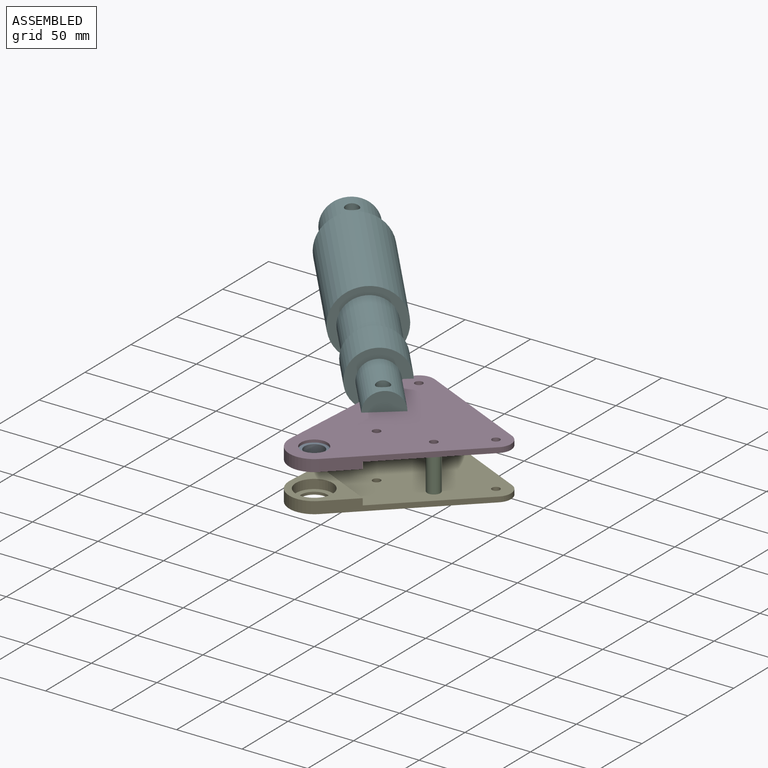
[diagram: assembled view]
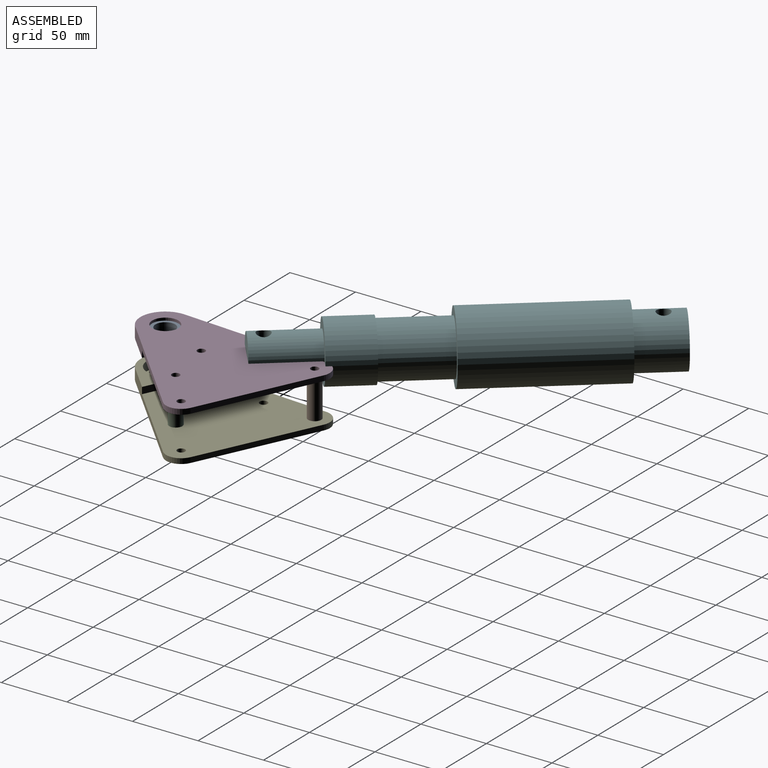
[diagram: assembled view, second angle]
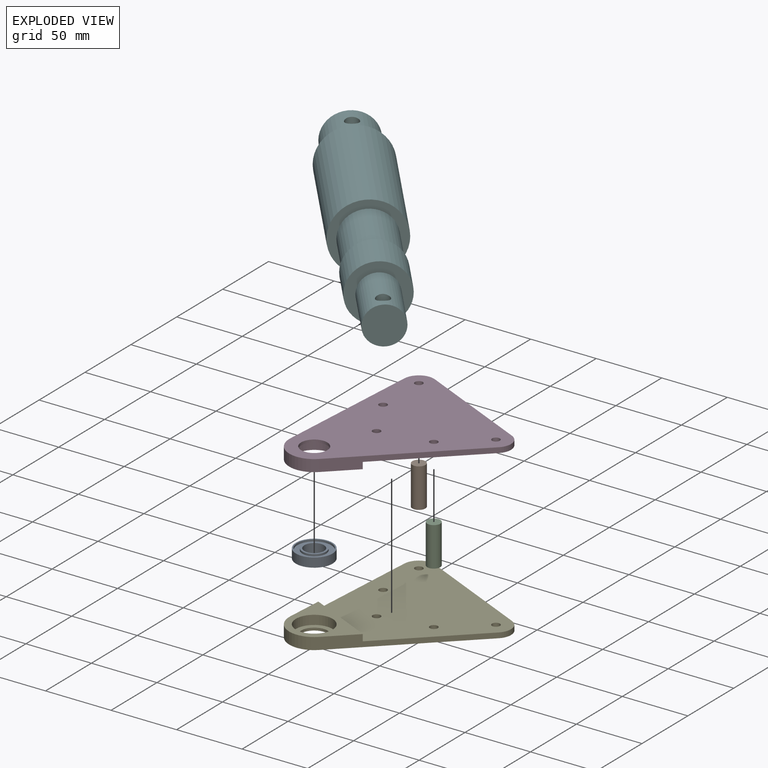
[diagram: exploded view]
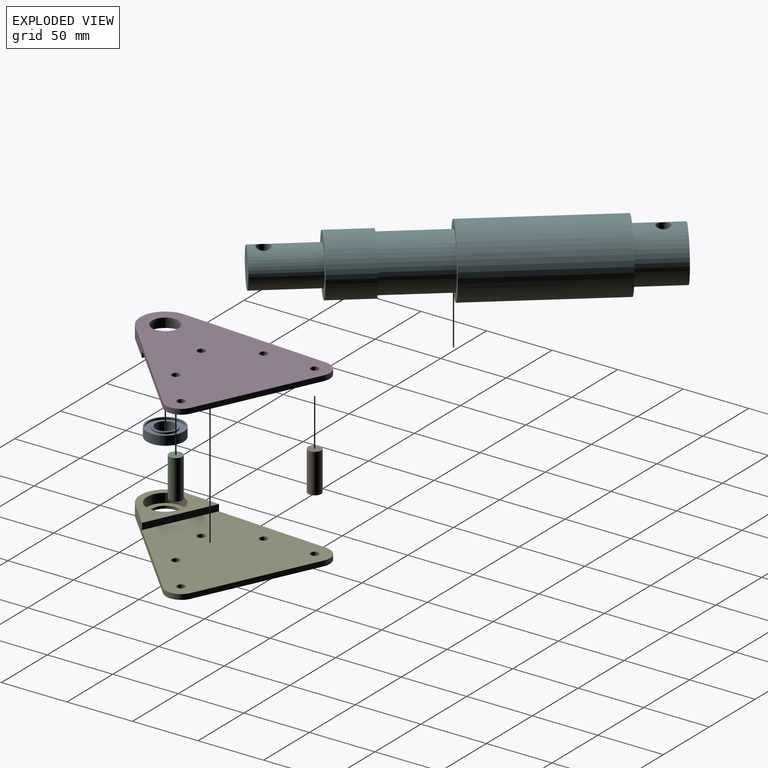
[diagram: exploded view, second angle]
ASSEMBLY  parts=6 mates=9
PART A: 12 faces, bbox 28x7x28 mm
  f0: plane 18x18mm, normal (0,1,0), area 77.8mm2, adj f2,f9
  f1: plane 18x18mm, normal (0,-1,0), area 77.8mm2, adj f2,f6
  f2: cylinder r=7.5mm len=15mm, axis (0,1,0), area 329.9mm2, adj f0,f1
  f3: cylinder r=14mm len=28mm, axis (0,1,0), area 615.8mm2, adj f4,f5
  f4: plane 28x28mm, normal (0,-1,0), area 84.8mm2, adj f3,f7
  f5: plane 28x28mm, normal (0,1,0), area 84.8mm2, adj f3,f10
  f6: cylinder r=9mm len=18mm, axis (0,-1,0), area 84.8mm2, adj f1,f8
  f7: cylinder r=13mm len=26mm, axis (0,-1,0), area 122.5mm2, adj f4,f8
  f8: plane 26x26mm, normal (0,-1,0), area 276.5mm2, adj f6,f7
  f9: cylinder r=9mm len=18mm, axis (0,1,0), area 84.8mm2, adj f0,f11
  f10: cylinder r=13mm len=26mm, axis (0,1,0), area 122.5mm2, adj f5,f11
  f11: plane 26x26mm, normal (0,1,0), area 276.5mm2, adj f9,f10
PART B: 3 faces, bbox 10x30x10 mm
  f0: cylinder r=5mm len=30mm, axis (0,1,0), area 942.5mm2, adj f1,f2
  f1: plane 10x10mm, normal (0,-1,0), area 78.5mm2, adj f0
  f2: plane 10x10mm, normal (0,1,0), area 78.5mm2, adj f0
PART C: same geometry as B
PART D: 18 faces, bbox 117.8x144.5x9 mm
  f0: cylinder r=10mm len=20mm, axis (0,0,-1), area 125.7mm2, adj f11,f14
  f1: plane 87.33x40.72mm, normal (0.42,0.91,0), area 385.4mm2, adj f2,f10,f11,f12
  f2: cylinder r=11.5mm len=16.34mm, axis (0,0,-1), area 89.3mm2, adj f1,f3,f11,f12
  f3: plane 113.51x9mm, normal (-1,0.07,0), area 593.8mm2, adj f2,f4,f11,f12,f15,f16
  f4: cylinder r=19mm len=32.14mm, axis (0,0,-1), area 410.5mm2, adj f3,f5,f11,f16
  f5: plane 82.14x78.69mm, normal (0.69,-0.72,0), area 593.8mm2, adj f4,f10,f11,f12,f15,f16
  f6: cylinder r=3mm len=6mm, axis (0,0,-1), area 75.4mm2, adj f11,f12
  f7: cylinder r=3mm len=6mm, axis (0,0,-1), area 75.4mm2, adj f11,f12
  f8: cylinder r=3mm len=6mm, axis (0,0,-1), area 75.4mm2, adj f11,f12
  f9: cylinder r=3mm len=6mm, axis (0,0,-1), area 75.4mm2, adj f11,f12
  f10: cylinder r=11.5mm len=18.73mm, axis (0,0,-1), area 89.3mm2, adj f1,f5,f11,f12
  f11: plane 144.5x117.83mm, normal (0,0,1), area 9789.8mm2, adj f0,f1,f2,f3,f4,f5,f6,f7
  f12: plane 120.01x115.96mm, normal (0,0,-1), area 8615.7mm2, adj f1,f2,f3,f5,f6,f7,f8,f9
  f13: cylinder r=14mm len=28mm, axis (0,0,-1), area 615.8mm2, adj f14,f16
  f14: plane 28x28mm, normal (0,0,-1), area 301.6mm2, adj f0,f13
  f15: plane 50.32x23.47mm, normal (0.42,0.91,0), area 277.6mm2, adj f3,f5,f12,f16
  f16: plane 52.19x47.95mm, normal (0,0,-1), area 872.6mm2, adj f3,f4,f5,f13,f15
  f17: cylinder r=3mm len=6mm, axis (0,0,-1), area 75.4mm2, adj f11,f12
PART E: same geometry as D
PART F: 13 faces, bbox 276.4x52.6x52.6 mm
  f0: cylinder r=20mm len=40mm, axis (-1,0,0), area 4273.3mm2, adj f3,f4,f12
  f1: cylinder r=14.48mm len=47.75mm, axis (-1,0,0), area 4179.3mm2, adj f2,f10,f11
  f2: plane 28.96x28.96mm, normal (-1,0,0), area 658.5mm2, adj f1
  f3: plane 40x40mm, normal (1,0,0), area 1256.6mm2, adj f0
  f4: plane 52.58x52.58mm, normal (1,0,0), area 914.6mm2, adj f0,f5
  f5: cylinder r=26.29mm len=110.74mm, axis (-1,0,0), area 18292.5mm2, adj f4,f6
  f6: plane 52.58x52.58mm, normal (-1,0,0), area 914.6mm2, adj f5,f7
  f7: cylinder r=20mm len=49.53mm, axis (-1,0,0), area 6224.1mm2, adj f6,f8
  f8: plane 44.2x44.2mm, normal (1,0,0), area 277.5mm2, adj f7,f9
  f9: cylinder r=22.1mm len=44.2mm, axis (-1,0,0), area 4584.7mm2, adj f8,f10
  f10: plane 44.2x44.2mm, normal (-1,0,0), area 875.6mm2, adj f1,f9
  f11: cylinder r=5.08mm len=28.96mm, axis (0,1,0), area 895.1mm2, adj f1
  f12: cylinder r=5.08mm len=40mm, axis (0,1,0), area 1255.9mm2, adj f0
PLACE A rot(axis=(0,0.71,-0.71),180deg) t=(0,0,-9)mm
PLACE B rot(axis=(0.25,-0.68,-0.68),152deg) t=(0,114,-4)mm
PLACE C rot(axis=(0,-0.71,0.71),180deg) t=(57.45,48.21,-34)mm
PLACE D t=(0,0,-4)mm
PLACE E rot(axis=(0.42,0.91,0),180deg) t=(0,0,-34)mm
PLACE F rot(axis=(-0.32,-0.67,0.67),144.8deg) t=(-168.74,280.22,0)mm
MATE planar C.f0 <-> E.f12  axis (0,0,-1) through (57.45,48.21,-34)mm
MATE fastened B.f0 <-> E.f8  axis (0,0,-1) through (0,114,-34)mm
MATE revolute C.f0 <-> E.f9  axis (0,0,-1) through (57.45,48.21,-34)mm
MATE revolute D.f7 <-> B.f0  axis (0,0,-1) through (0,114,-4)mm
MATE planar E.f9 <-> C.f0  axis (0,0,1) through (57.45,48.21,-34)mm
MATE revolute F.f11 <-> D.f9  axis (0,0,-1) through (0,75,0)mm
MATE fastened C.f0 <-> D.f6  axis (0,0,1) through (57.45,48.21,-4)mm
MATE planar D.f12 <-> C.f0  axis (0,0,-1) through (30.72,65.87,-4)mm
MATE fastened A.f2 <-> D.f0  axis (0,0,1) through (0,0,-2)mm
